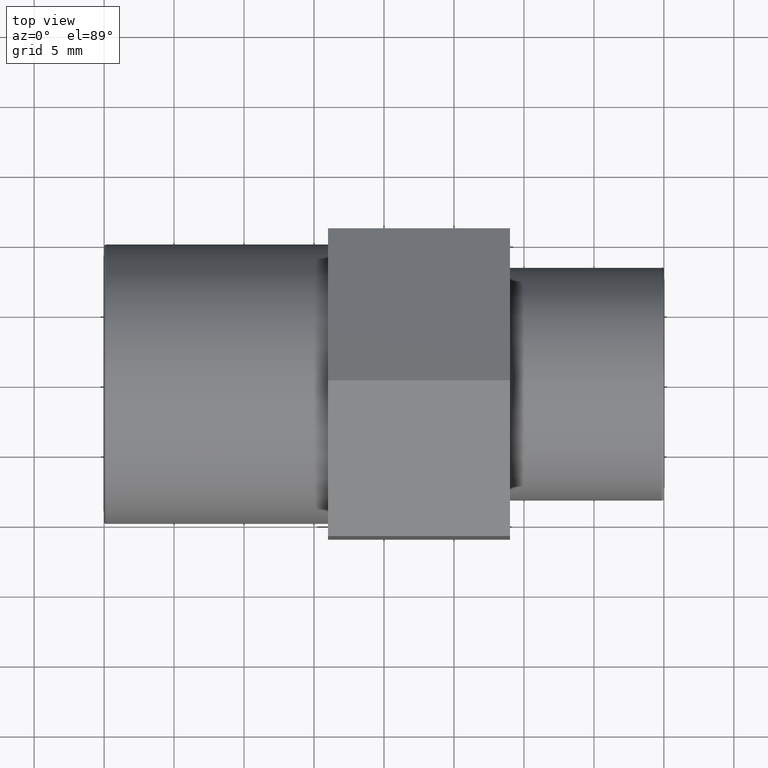
[diagram: clean part render]
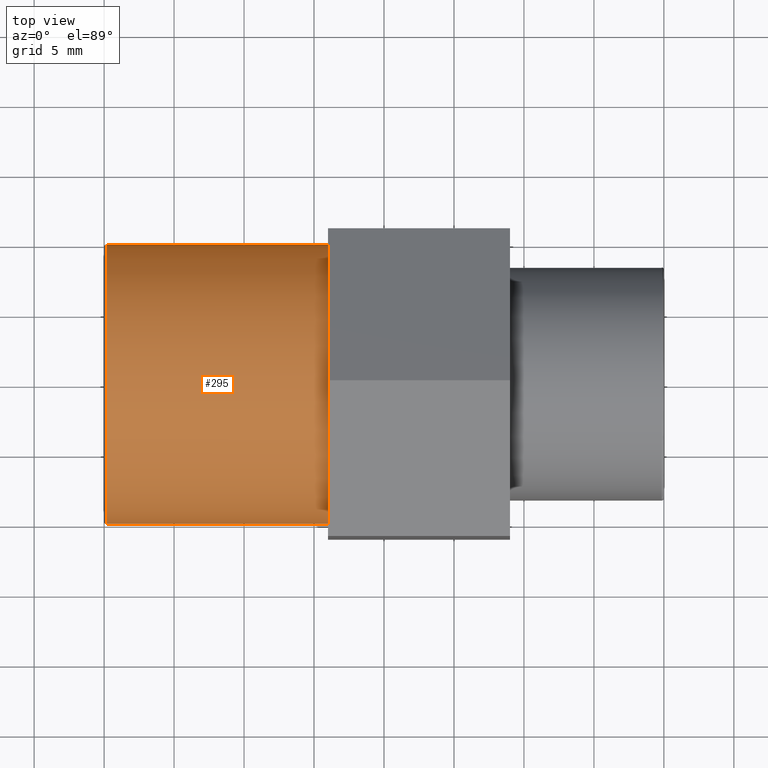
[diagram: same view with one face highlighted and labeled with its STEP entity id]
A machine part, top view. The second image highlights one B-rep face of the part: STEP entity #295.
In plain terms, the highlighted cylindrical surface (bore or boss wall) has radius 10 mm, axis along (-1, -0, 0).
Its self-contained STEP definition (entity closure, byte-faithful):
#18=CYLINDRICAL_SURFACE('',#329,10.);
#29=FACE_BOUND('',#99,.T.);
#45=CIRCLE('',#328,10.);
#46=CIRCLE('',#330,10.);
#68=FACE_OUTER_BOUND('',#98,.T.);
#98=EDGE_LOOP('',(#246));
#99=EDGE_LOOP('',(#247));
#168=VERTEX_POINT('',#494);
#169=VERTEX_POINT('',#497);
#200=EDGE_CURVE('',#168,#168,#45,.T.);
#201=EDGE_CURVE('',#169,#169,#46,.T.);
#246=ORIENTED_EDGE('',*,*,#201,.T.);
#247=ORIENTED_EDGE('',*,*,#200,.F.);
#295=ADVANCED_FACE('',(#68,#29),#18,.T.);
#328=AXIS2_PLACEMENT_3D('',#495,#408,#409);
#329=AXIS2_PLACEMENT_3D('',#496,#410,#411);
#330=AXIS2_PLACEMENT_3D('',#498,#412,#413);
#408=DIRECTION('center_axis',(-1.,-6.73555739531044E-16,0.));
#409=DIRECTION('ref_axis',(-6.73072708679001E-16,1.,6.12323399573677E-17));
#410=DIRECTION('center_axis',(-1.,-6.73555739531044E-16,0.));
#411=DIRECTION('ref_axis',(6.93889390390723E-16,-1.,0.));
#412=DIRECTION('center_axis',(-1.,-6.73555739531044E-16,0.));
#413=DIRECTION('ref_axis',(0.,0.,1.));
#494=CARTESIAN_POINT('',(-19.84,-10.,6.12323399573677E-16));
#495=CARTESIAN_POINT('Origin',(-19.84,-9.68940547485386E-15,0.));
#496=CARTESIAN_POINT('Origin',(-12.,-4.40872847693047E-15,0.));
#497=CARTESIAN_POINT('',(-4.,-10.,0.));
#498=CARTESIAN_POINT('Origin',(-4.00000000000001,9.79717439317878E-16,0.));